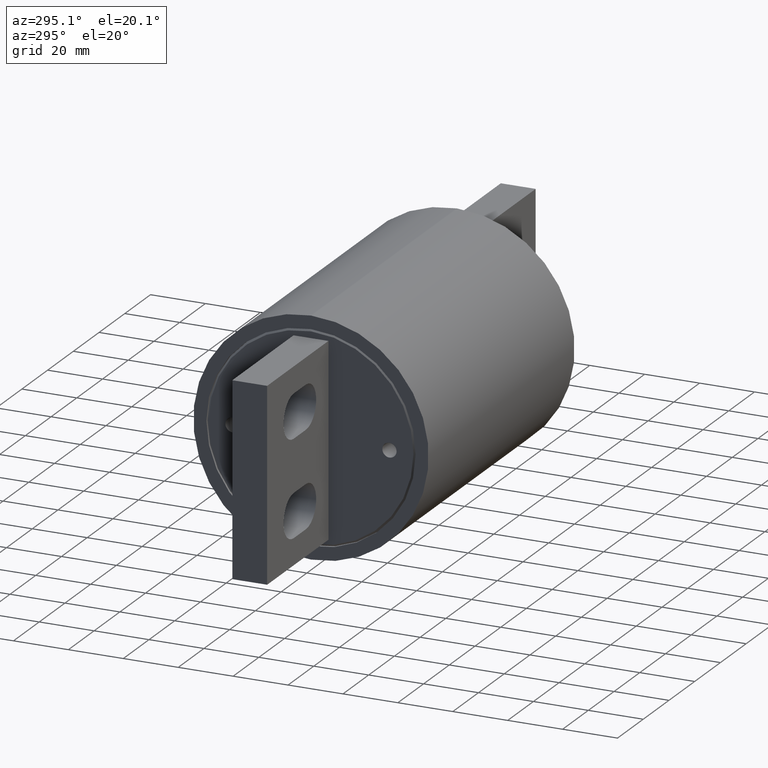
[diagram: clean part render]
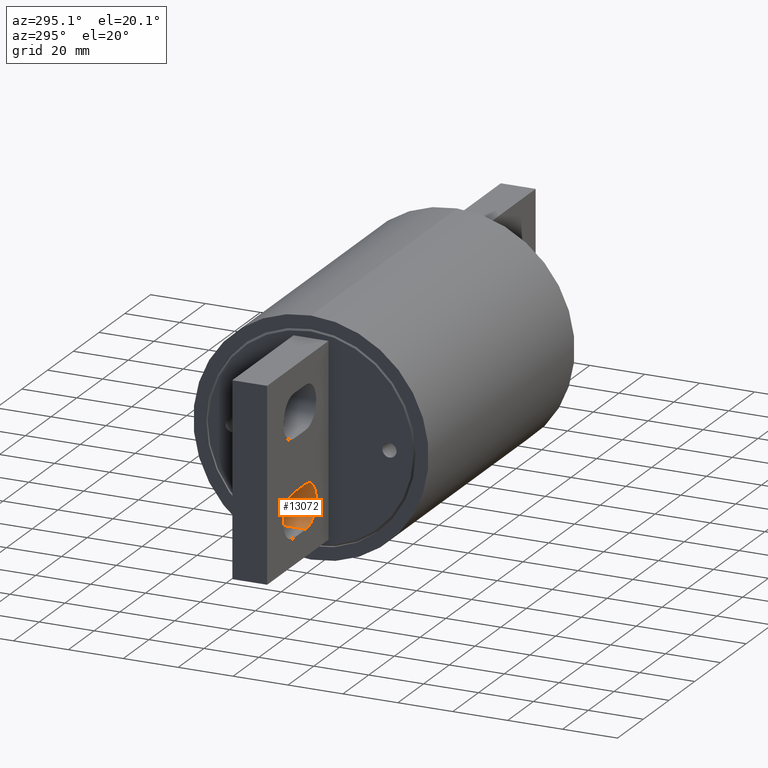
[diagram: same view with one face highlighted and labeled with its STEP entity id]
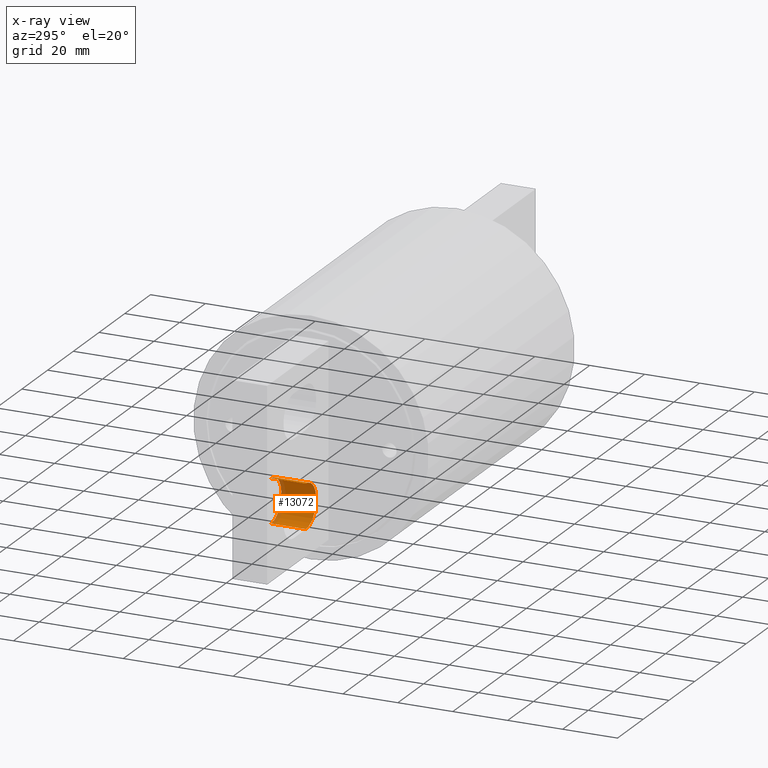
[diagram: x-ray of the same camera — body ghosted, the highlighted face saturated]
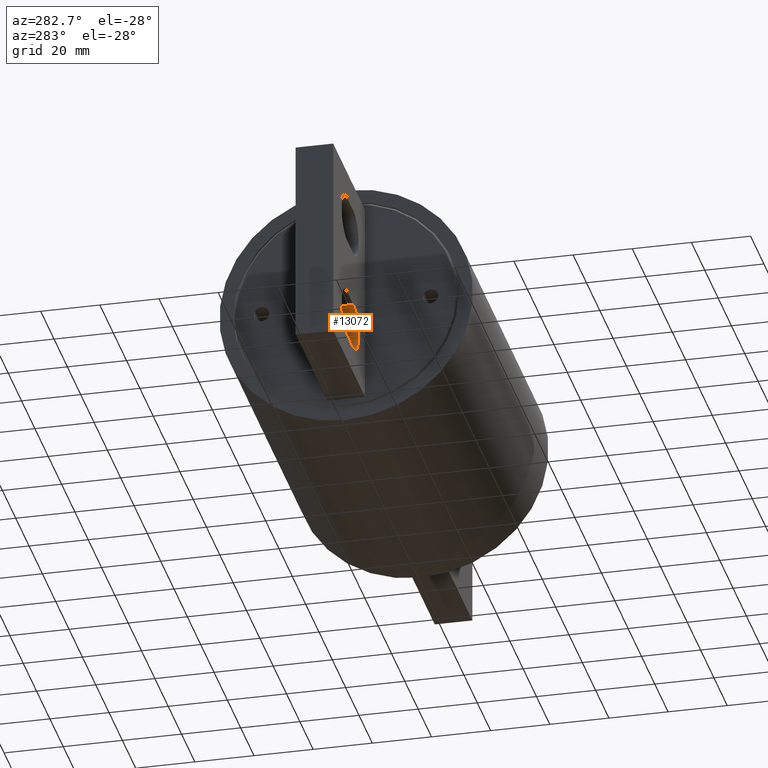
[diagram: same view with one face highlighted and labeled with its STEP entity id]
A machine part, auxiliary view. The second image highlights one B-rep face of the part: STEP entity #13072.
The next image is the same camera in x-ray: the body ghosted, the highlighted face saturated — about 12% of this face is hidden behind the body in this view.
A second angle (auxiliary view) of the same face is appended — the face is thin or edge-on in the first view.
In plain terms, the highlighted cylindrical surface (edge-blend (fillet) strip) has radius 7.9375 mm, axis along (0, -1, -0).
Its self-contained STEP definition (entity closure, byte-faithful):
#165 = ORIENTED_EDGE ( 'NONE', *, *, #6952, .T. ) ;
#428 = ORIENTED_EDGE ( 'NONE', *, *, #11488, .F. ) ;
#532 = DIRECTION ( 'NONE',  ( 7.360183935079494200E-017, -1.000000000000000000, -5.520159270106857000E-017 ) ) ;
#1049 = AXIS2_PLACEMENT_3D ( 'NONE', #8818, #3039, #3399 ) ;
#2880 = VERTEX_POINT ( 'NONE', #6542 ) ;
#3039 = DIRECTION ( 'NONE',  ( 7.360183935079494200E-017, -1.000000000000000000, -5.520159270106857000E-017 ) ) ;
#3166 = LINE ( 'NONE', #13651, #13904 ) ;
#3357 = DIRECTION ( 'NONE',  ( 7.360183935079494200E-017, -1.000000000000000000, -5.520159270106857000E-017 ) ) ;
#3399 = DIRECTION ( 'NONE',  ( 0.0000000000000000000, -1.092739197465705900E-016, 1.000000000000000000 ) ) ;
#4086 = CARTESIAN_POINT ( 'NONE',  ( -2.922499999999998100, -0.2499999999999999700, -0.3749999999999996700 ) ) ;
#4175 = CIRCLE ( 'NONE', #7429, 0.3124999999999998300 ) ;
#4675 = CARTESIAN_POINT ( 'NONE',  ( -2.922499999999999400, 0.2500000000000000600, -0.6874999999999994400 ) ) ;
#5885 = LINE ( 'NONE', #6114, #5932 ) ;
#5886 = ORIENTED_EDGE ( 'NONE', *, *, #6322, .F. ) ;
#5932 = VECTOR ( 'NONE', #8259, 39.37007874015748100 ) ;
#5985 = EDGE_CURVE ( 'NONE', #12067, #13934, #7042, .T. ) ;
#6114 = CARTESIAN_POINT ( 'NONE',  ( -2.922499999999998100, 0.2500000000000000600, -0.3749999999999995000 ) ) ;
#6188 = AXIS2_PLACEMENT_3D ( 'NONE', #9167, #3357, #9368 ) ;
#6322 = EDGE_CURVE ( 'NONE', #2880, #6853, #4175, .T. ) ;
#6418 = CARTESIAN_POINT ( 'NONE',  ( -2.922499999999999400, -0.2499999999999999200, -0.9999999999999994400 ) ) ;
#6542 = CARTESIAN_POINT ( 'NONE',  ( -2.922499999999999400, 0.2500000000000000600, -0.9999999999999994400 ) ) ;
#6853 = VERTEX_POINT ( 'NONE', #9145 ) ;
#6952 = EDGE_CURVE ( 'NONE', #2880, #12067, #3166, .T. ) ;
#7042 = CIRCLE ( 'NONE', #1049, 0.3124999999999998300 ) ;
#7353 = EDGE_LOOP ( 'NONE', ( #12166, #428, #5886, #165 ) ) ;
#7429 = AXIS2_PLACEMENT_3D ( 'NONE', #4675, #532, #11724 ) ;
#8259 = DIRECTION ( 'NONE',  ( 7.360183935079494200E-017, -1.000000000000000000, -5.520159270106857700E-017 ) ) ;
#8818 = CARTESIAN_POINT ( 'NONE',  ( -2.922499999999999400, -0.2499999999999999700, -0.6874999999999994400 ) ) ;
#9145 = CARTESIAN_POINT ( 'NONE',  ( -2.922499999999998100, 0.2500000000000000600, -0.3749999999999995000 ) ) ;
#9167 = CARTESIAN_POINT ( 'NONE',  ( -2.922499999999999400, 0.2500000000000000600, -0.6874999999999994400 ) ) ;
#9368 = DIRECTION ( 'NONE',  ( 0.0000000000000000000, -1.092739197465705900E-016, 1.000000000000000000 ) ) ;
#9451 = DIRECTION ( 'NONE',  ( 7.360183935079494200E-017, -1.000000000000000000, -5.520159270106857700E-017 ) ) ;
#11488 = EDGE_CURVE ( 'NONE', #6853, #13934, #5885, .T. ) ;
#11724 = DIRECTION ( 'NONE',  ( 0.0000000000000000000, -1.092739197465705900E-016, 1.000000000000000000 ) ) ;
#12067 = VERTEX_POINT ( 'NONE', #6418 ) ;
#12166 = ORIENTED_EDGE ( 'NONE', *, *, #5985, .T. ) ;
#13072 = ADVANCED_FACE ( 'NONE', ( #13886 ), #14110, .F. ) ;
#13651 = CARTESIAN_POINT ( 'NONE',  ( -2.922499999999999400, 0.2500000000000000600, -0.9999999999999994400 ) ) ;
#13886 = FACE_OUTER_BOUND ( 'NONE', #7353, .T. ) ;
#13904 = VECTOR ( 'NONE', #9451, 39.37007874015748100 ) ;
#13934 = VERTEX_POINT ( 'NONE', #4086 ) ;
#14110 = CYLINDRICAL_SURFACE ( 'NONE', #6188, 0.3124999999999998300 ) ;